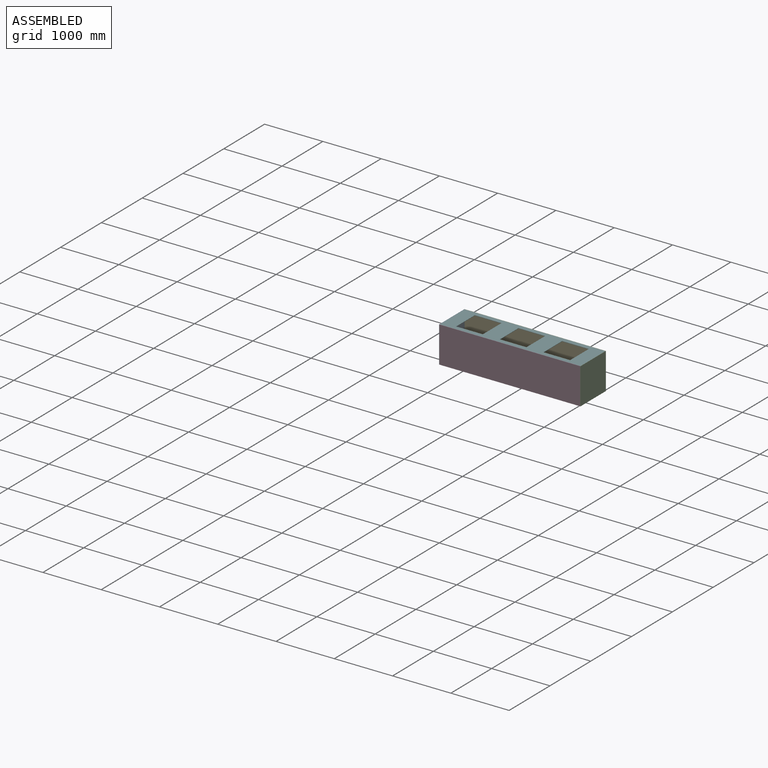
[diagram: assembled view]
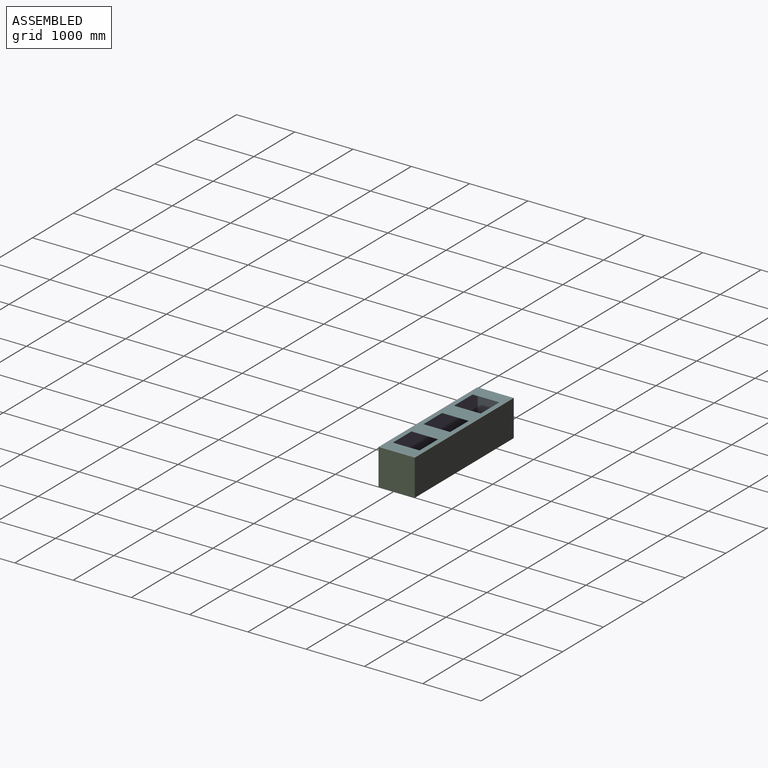
[diagram: assembled view, second angle]
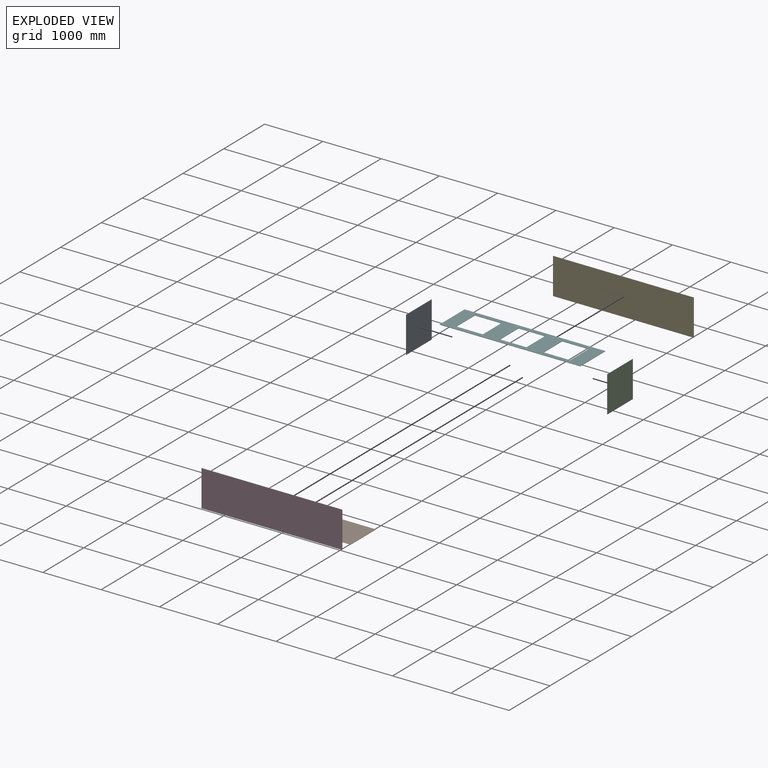
[diagram: exploded view]
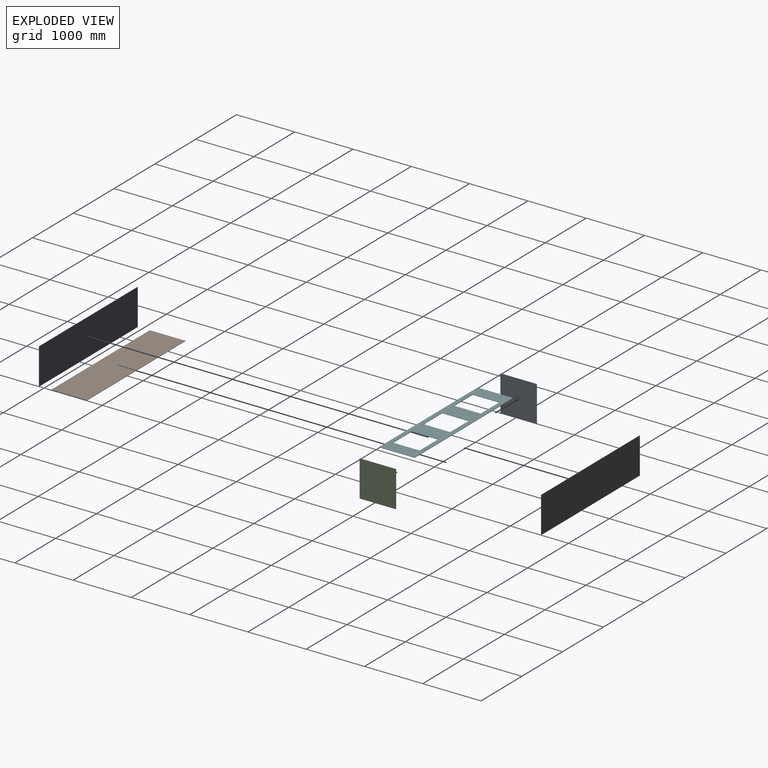
[diagram: exploded view, second angle]
ASSEMBLY  parts=6 mates=5
PART A: 6 faces, bbox 6.4x622.3x622.3 mm
  f0: plane 622.3x6.35mm, normal (0,0,1), area 3951.6mm2, adj f1,f3,f4,f5
  f1: plane 622.3x6.35mm, normal (0,-1,0), area 3951.6mm2, adj f0,f2,f4,f5
  f2: plane 622.3x6.35mm, normal (0,0,-1), area 3951.6mm2, adj f1,f3,f4,f5
  f3: plane 622.3x6.35mm, normal (0,1,0), area 3951.6mm2, adj f0,f2,f4,f5
  f4: plane 622.3x622.3mm, normal (1,0,0), area 387257.3mm2, adj f0,f1,f2,f3
  f5: plane 622.3x622.3mm, normal (-1,0,0), area 387257.3mm2, adj f0,f1,f2,f3
PART B: 6 faces, bbox 2413x609.6x6.4 mm
  f0: plane 2413x6.35mm, normal (0,1,0), area 15322.6mm2, adj f1,f3,f4,f5
  f1: plane 609.6x6.35mm, normal (-1,0,0), area 3871mm2, adj f0,f2,f4,f5
  f2: plane 2413x6.35mm, normal (0,-1,0), area 15322.6mm2, adj f1,f3,f4,f5
  f3: plane 609.6x6.35mm, normal (1,0,0), area 3871mm2, adj f0,f2,f4,f5
  f4: plane 2413x609.6mm, normal (0,0,1), area 1470964.8mm2, adj f0,f1,f2,f3
  f5: plane 2413x609.6mm, normal (0,0,-1), area 1470964.8mm2, adj f0,f1,f2,f3
PART C: same geometry as A
PART D: 6 faces, bbox 2413x6.4x622.3 mm
  f0: plane 2413x6.35mm, normal (0,0,1), area 15322.5mm2, adj f1,f3,f4,f5
  f1: plane 622.3x6.35mm, normal (-1,0,0), area 3951.6mm2, adj f0,f2,f4,f5
  f2: plane 2413x6.35mm, normal (0,0,-1), area 15322.5mm2, adj f1,f3,f4,f5
  f3: plane 622.3x6.35mm, normal (1,0,0), area 3951.6mm2, adj f0,f2,f4,f5
  f4: plane 2413x622.3mm, normal (0,-1,0), area 1501609.9mm2, adj f0,f1,f2,f3
  f5: plane 2413x622.3mm, normal (0,1,0), area 1501609.9mm2, adj f0,f1,f2,f3
PART E: same geometry as D
PART F: 18 faces, bbox 2413x609.6x6.4 mm
  f0: plane 2413x609.6mm, normal (0,0,1), area 843869.3mm2, adj f2,f3,f4,f5,f6,f7,f8,f9
  f1: plane 2413x609.6mm, normal (0,0,-1), area 843869.3mm2, adj f2,f3,f4,f5,f6,f7,f8,f9
  f2: plane 2413x6.35mm, normal (0,1,0), area 15322.6mm2, adj f0,f1,f3,f5
  f3: plane 609.6x6.35mm, normal (-1,0,0), area 3871mm2, adj f0,f1,f2,f4
  f4: plane 2413x6.35mm, normal (0,-1,0), area 15322.6mm2, adj f0,f1,f3,f5
  f5: plane 609.6x6.35mm, normal (1,0,0), area 3871mm2, adj f0,f1,f2,f4
  f6: plane 457.2x6.35mm, normal (0,-1,0), area 2903.2mm2, adj f0,f1,f7,f9
  f7: plane 457.2x6.35mm, normal (1,0,0), area 2903.2mm2, adj f0,f1,f6,f8
  f8: plane 457.2x6.35mm, normal (0,1,0), area 2903.2mm2, adj f0,f1,f7,f9
  f9: plane 457.2x6.35mm, normal (-1,0,0), area 2903.2mm2, adj f0,f1,f6,f8
  f10: plane 457.2x6.35mm, normal (0,-1,0), area 2903.2mm2, adj f0,f1,f11,f13
  f11: plane 457.2x6.35mm, normal (1,0,0), area 2903.2mm2, adj f0,f1,f10,f12
  f12: plane 457.2x6.35mm, normal (0,1,0), area 2903.2mm2, adj f0,f1,f11,f13
  f13: plane 457.2x6.35mm, normal (-1,0,0), area 2903.2mm2, adj f0,f1,f10,f12
  f14: plane 457.2x6.35mm, normal (0,-1,0), area 2903.2mm2, adj f0,f1,f15,f17
  f15: plane 457.2x6.35mm, normal (1,0,0), area 2903.2mm2, adj f0,f1,f14,f16
  f16: plane 457.2x6.35mm, normal (0,1,0), area 2903.2mm2, adj f0,f1,f15,f17
  f17: plane 457.2x6.35mm, normal (-1,0,0), area 2903.2mm2, adj f0,f1,f14,f16
PLACE A t=(-1355.71,61,-267.74)mm
PLACE B t=(-661.17,116.83,-498.5)mm
PLACE C t=(1063.64,61,-267.74)mm
PLACE D t=(-126.88,-204.14,-144.56)mm
PLACE E t=(-126.88,411.81,-144.56)mm
PLACE F t=(-661.17,116.83,117.45)mm
MATE fastened A.f4 <-> B.f1  axis (1,0,0) through (-1349.36,100.66,-498.5)mm
MATE fastened B.f0 <-> E.f4  axis (0,1,0) through (-142.86,405.46,-498.5)mm
MATE fastened B.f2 <-> D.f5  axis (0,-1,0) through (-142.86,-204.14,-498.5)mm
MATE fastened F.f3 <-> A.f4  axis (-1,0,0) through (-1349.36,100.66,123.8)mm
MATE fastened C.f5 <-> B.f3  axis (-1,0,0) through (1063.64,100.66,-498.5)mm
